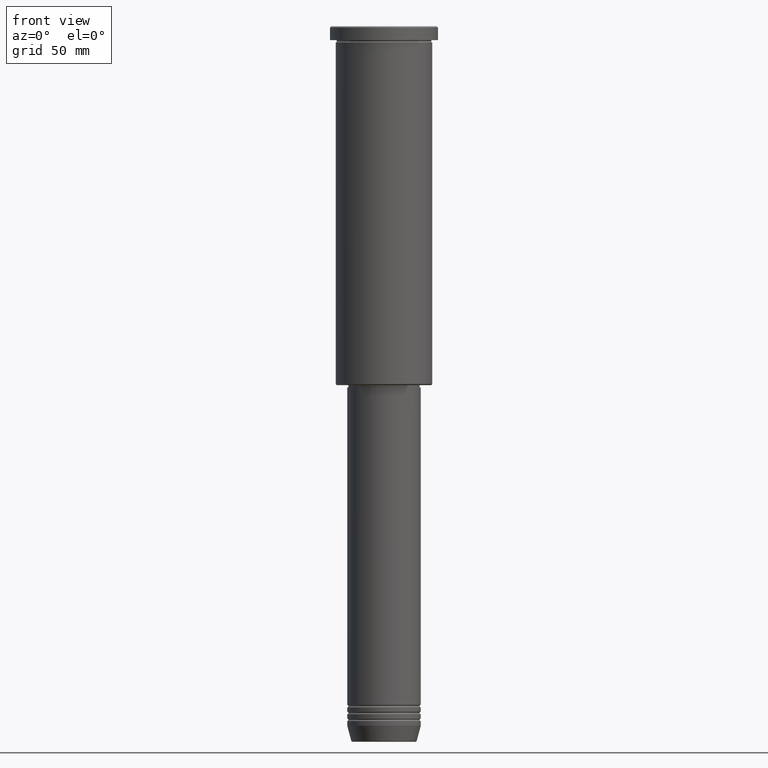
[diagram: clean part render]
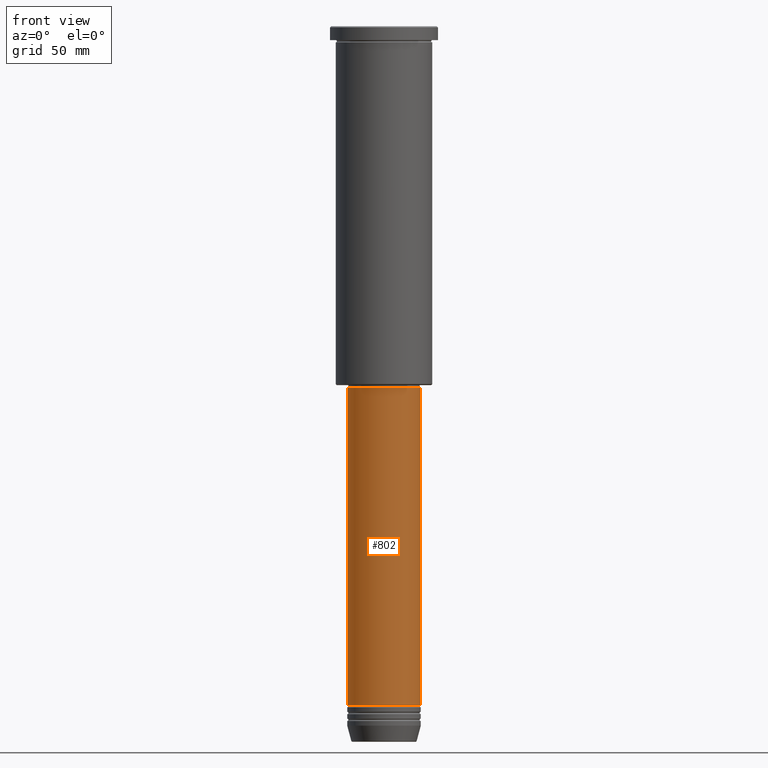
[diagram: same view with one face highlighted and labeled with its STEP entity id]
A machine part, front view. The second image highlights one B-rep face of the part: STEP entity #802.
In plain terms, the highlighted cylindrical surface (partial cylindrical patch) has radius 16 mm, axis along (-0, -0, 1).
Its self-contained STEP definition (entity closure, byte-faithful):
#27 = CARTESIAN_POINT ( 'NONE',  ( 16.00000000000000000, 0.000000000000000000, 0.000000000000000000 ) ) ;
#70 = DIRECTION ( 'NONE',  ( 1.000000000000000000, 0.000000000000000000, 0.000000000000000000 ) ) ;
#100 = FACE_OUTER_BOUND ( 'NONE', #984, .T. ) ;
#103 = DIRECTION ( 'NONE',  ( -0.000000000000000000, -0.000000000000000000, 1.000000000000000000 ) ) ;
#155 = CARTESIAN_POINT ( 'NONE',  ( -16.00000000000000000, 1.959434878635765131E-15, -295.0000000000000000 ) ) ;
#156 = AXIS2_PLACEMENT_3D ( 'NONE', #627, #103, #1111 ) ;
#160 = DIRECTION ( 'NONE',  ( -0.000000000000000000, -0.000000000000000000, 1.000000000000000000 ) ) ;
#178 = EDGE_CURVE ( 'NONE', #1043, #1174, #720, .T. ) ;
#181 = CARTESIAN_POINT ( 'NONE',  ( -16.00000000000000000, 1.959434878635765131E-15, -156.9999999999999147 ) ) ;
#186 = VERTEX_POINT ( 'NONE', #401 ) ;
#206 = DIRECTION ( 'NONE',  ( -0.000000000000000000, -0.000000000000000000, 1.000000000000000000 ) ) ;
#277 = ORIENTED_EDGE ( 'NONE', *, *, #178, .F. ) ;
#313 = CARTESIAN_POINT ( 'NONE',  ( 16.00000000000000000, 0.000000000000000000, -295.0000000000000000 ) ) ;
#400 = CIRCLE ( 'NONE', #156, 16.00000000000000000 ) ;
#401 = CARTESIAN_POINT ( 'NONE',  ( 16.00000000000000000, 0.000000000000000000, -156.9999999999999147 ) ) ;
#409 = DIRECTION ( 'NONE',  ( -0.000000000000000000, -0.000000000000000000, 1.000000000000000000 ) ) ;
#413 = ORIENTED_EDGE ( 'NONE', *, *, #1142, .T. ) ;
#448 = DIRECTION ( 'NONE',  ( 1.000000000000000000, 0.000000000000000000, 0.000000000000000000 ) ) ;
#536 = CARTESIAN_POINT ( 'NONE',  ( -16.00000000000000000, 1.959434878635765131E-15, 0.000000000000000000 ) ) ;
#603 = VECTOR ( 'NONE', #206, 1000.000000000000000 ) ;
#621 = CARTESIAN_POINT ( 'NONE',  ( 0.000000000000000000, 0.000000000000000000, 0.000000000000000000 ) ) ;
#627 = CARTESIAN_POINT ( 'NONE',  ( 0.000000000000000000, 0.000000000000000000, -156.9999999999999147 ) ) ;
#628 = VECTOR ( 'NONE', #409, 1000.000000000000000 ) ;
#720 = LINE ( 'NONE', #536, #603 ) ;
#799 = ORIENTED_EDGE ( 'NONE', *, *, #1172, .F. ) ;
#802 = ADVANCED_FACE ( 'NONE', ( #100 ), #995, .T. ) ;
#907 = AXIS2_PLACEMENT_3D ( 'NONE', #621, #1118, #448 ) ;
#954 = EDGE_CURVE ( 'NONE', #979, #186, #1128, .T. ) ;
#972 = CARTESIAN_POINT ( 'NONE',  ( 0.000000000000000000, 0.000000000000000000, -295.0000000000000000 ) ) ;
#979 = VERTEX_POINT ( 'NONE', #313 ) ;
#984 = EDGE_LOOP ( 'NONE', ( #277, #413, #1033, #799 ) ) ;
#995 = CYLINDRICAL_SURFACE ( 'NONE', #907, 16.00000000000000000 ) ;
#1033 = ORIENTED_EDGE ( 'NONE', *, *, #954, .T. ) ;
#1043 = VERTEX_POINT ( 'NONE', #155 ) ;
#1073 = AXIS2_PLACEMENT_3D ( 'NONE', #972, #160, #70 ) ;
#1111 = DIRECTION ( 'NONE',  ( 1.000000000000000000, 0.000000000000000000, 0.000000000000000000 ) ) ;
#1118 = DIRECTION ( 'NONE',  ( -0.000000000000000000, -0.000000000000000000, 1.000000000000000000 ) ) ;
#1128 = LINE ( 'NONE', #27, #628 ) ;
#1142 = EDGE_CURVE ( 'NONE', #1043, #979, #1164, .T. ) ;
#1164 = CIRCLE ( 'NONE', #1073, 16.00000000000000000 ) ;
#1172 = EDGE_CURVE ( 'NONE', #1174, #186, #400, .T. ) ;
#1174 = VERTEX_POINT ( 'NONE', #181 ) ;